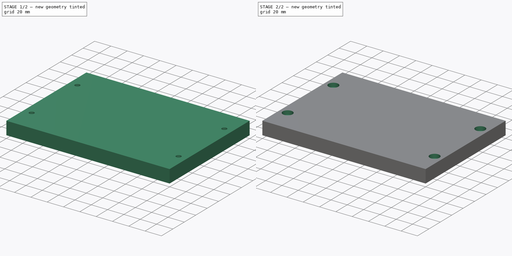
[diagram: build sequence overview — one tinted view per stage of 2, left to right]
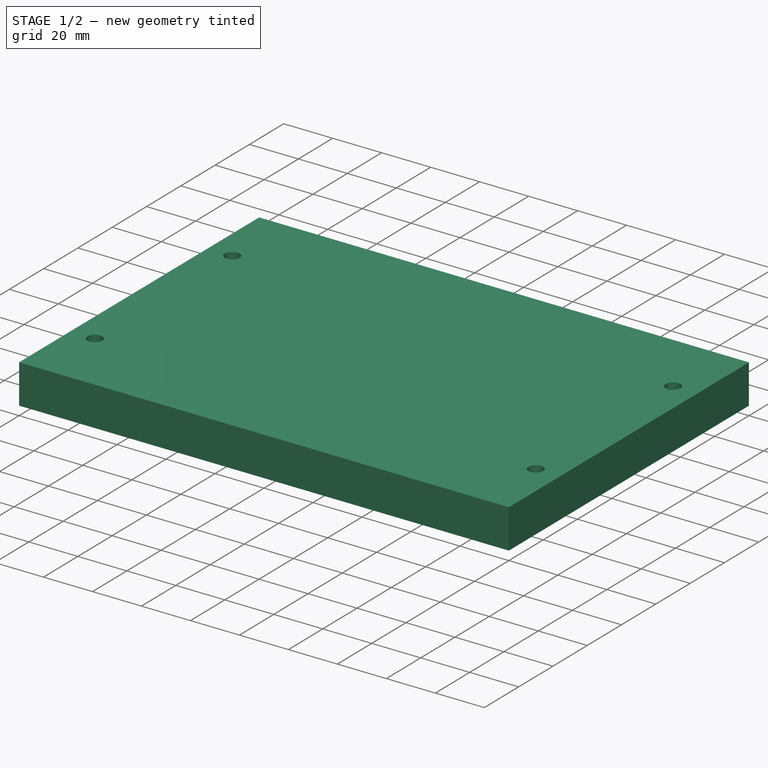
[diagram: stage 1 of 2 — iso view after this stage's code; geometry added in this stage tinted green]
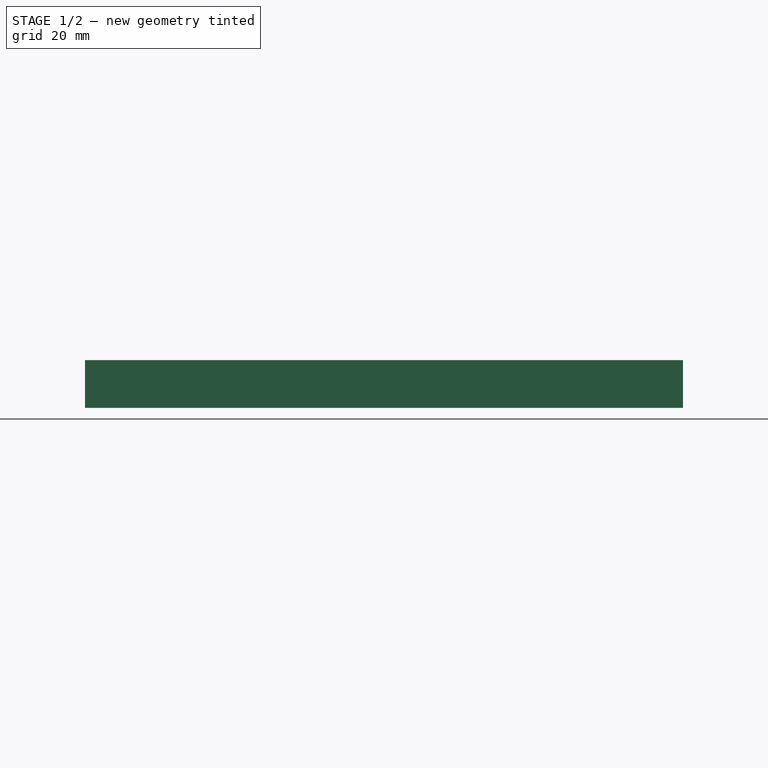
[diagram: stage 1 of 2 — front view after this stage's code; geometry added in this stage tinted green]
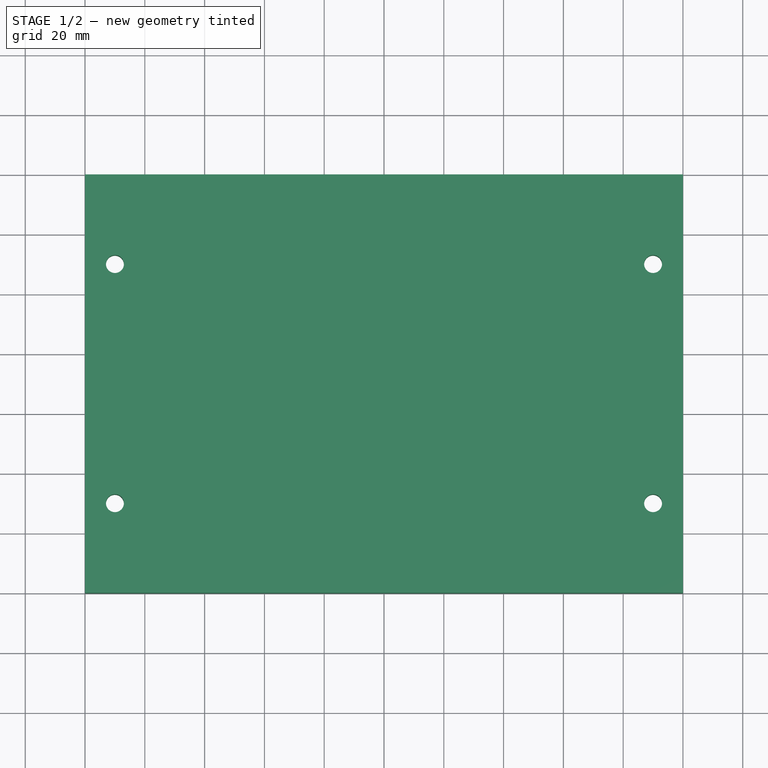
[diagram: stage 1 of 2 — top view after this stage's code; geometry added in this stage tinted green]
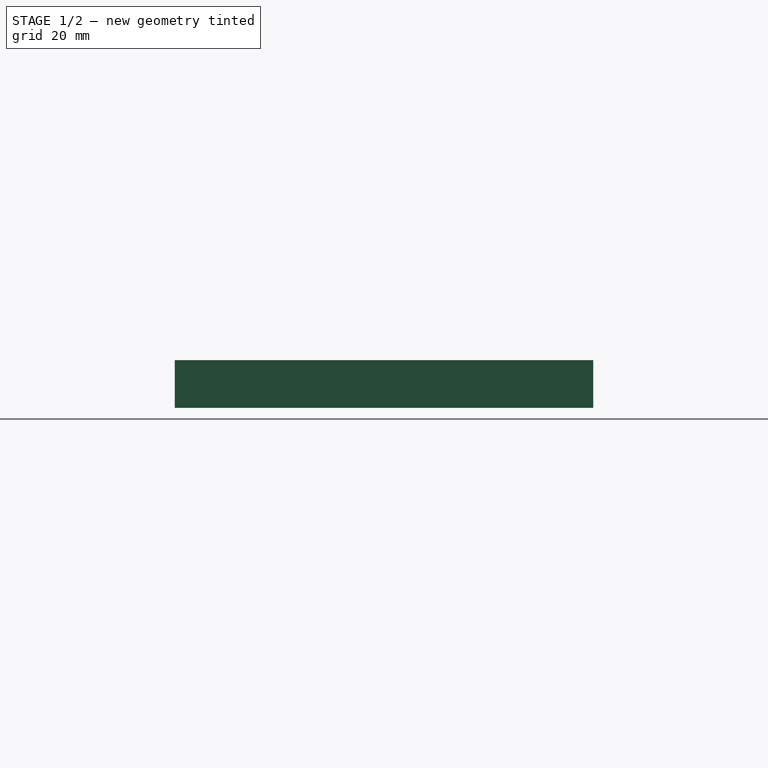
[diagram: stage 1 of 2 — right view after this stage's code; geometry added in this stage tinted green]
FCSTD DOCUMENT  (FreeCAD 0.17R9796 (Git))
Label: front_plate
License: All rights reserved
LicenseURL: http://en.wikipedia.org/wiki/All_rights_reserved
objects: Sketcher::SketchObject×2, PartDesign::Pad×1, PartDesign::Pocket×1, PartDesign::Body×1
note: 7 computed .brp shape members not serialized (recipe doc carries the construction recipe); baked Part::Feature solids carry a one-line shape summary decoded from their .brp

FEATURE [Sketcher::SketchObject] Sketch
  MapMode = 5
  Support = -> [XY_Plane]
  sketch-geometry (8):
    g0: LineSegment StartX=0 StartY=140 StartZ=0 EndX=200 EndY=140 EndZ=0
    g1: LineSegment StartX=200 StartY=140 StartZ=0 EndX=200 EndY=0 EndZ=0
    g2: LineSegment StartX=200 StartY=0 StartZ=0 EndX=0 EndY=0 EndZ=0
    g3: LineSegment StartX=0 StartY=0 StartZ=0 EndX=0 EndY=140 EndZ=0
    g4: Circle CenterX=10 CenterY=110 CenterZ=0 NormalX=0 NormalY=0 NormalZ=1 Radius=3
    g5: Circle CenterX=10 CenterY=30 CenterZ=0 NormalX=0 NormalY=0 NormalZ=1 Radius=3
    g6: Circle CenterX=190 CenterY=110 CenterZ=0 NormalX=0 NormalY=0 NormalZ=1 Radius=3
    g7: Circle CenterX=190 CenterY=30 CenterZ=0 NormalX=0 NormalY=0 NormalZ=1 Radius=3
  constraints (23):
    c: Coincident(g0,g1)
    c: Coincident(g1,g2)
    c: Coincident(g2,g3)
    c: Coincident(g3,g0)
    c: Horizontal(g0)
    c: Horizontal(g2)
    c: Vertical(g1)
    c: Vertical(g3)
    c: Coincident(g2,g-1)
    c: DistanceY(g3,g3) = 140
    c: DistanceX(g2,g2) = 200
    c: DistanceX(g6,g0) = 10
    c: DistanceX(g7,g1) = 10
    c: DistanceX(g-1,g5) = 10
    c: DistanceX(g0,g4) = 10
    c: DistanceY(g-1,g5) = 30
    c: DistanceY(g1,g7) = 30
    c: DistanceY(g6,g0) = 30
    c: DistanceY(g4,g0) = 30
    c: Radius(g4) = 3
    c: Radius(g6) = 3
    c: Radius(g7) = 3
    c: Radius(g5) = 3
FEATURE [PartDesign::Pad] Pad
  Length = 16
  Length2 = 100
  Profile = -> Sketch
  Type = 0
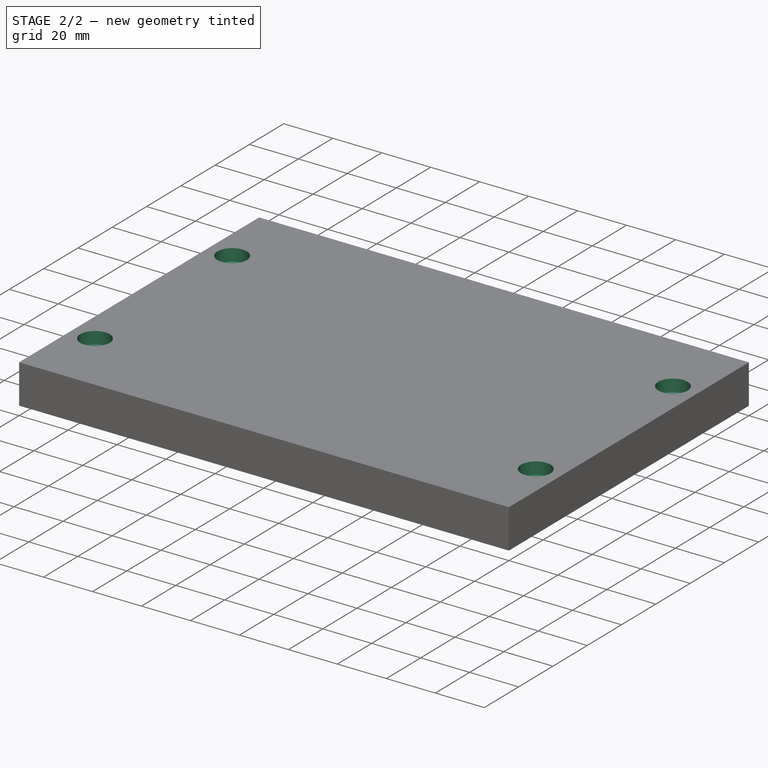
[diagram: stage 2 of 2 — iso view after this stage's code; geometry added in this stage tinted green]
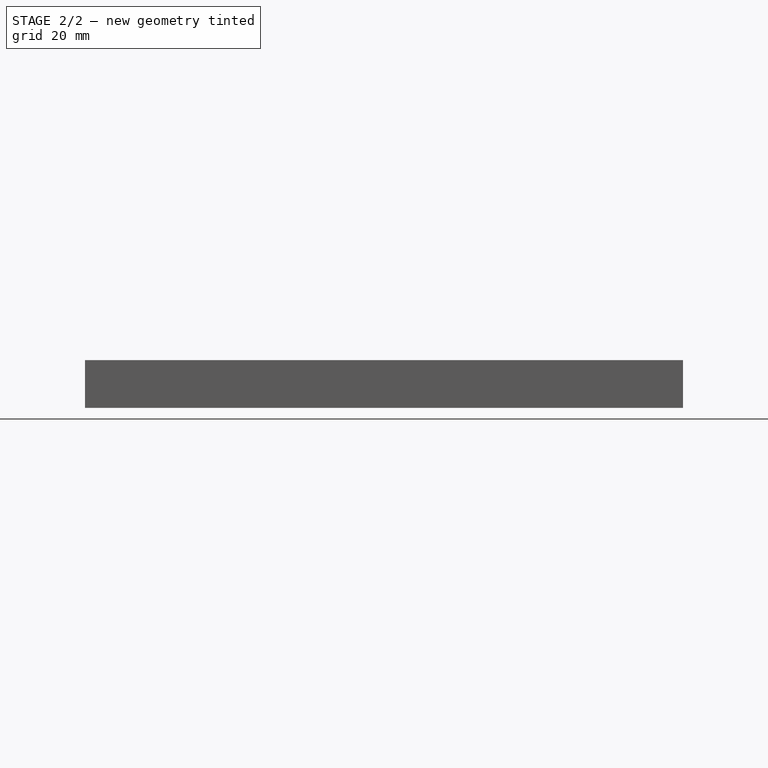
[diagram: stage 2 of 2 — front view after this stage's code; geometry added in this stage tinted green]
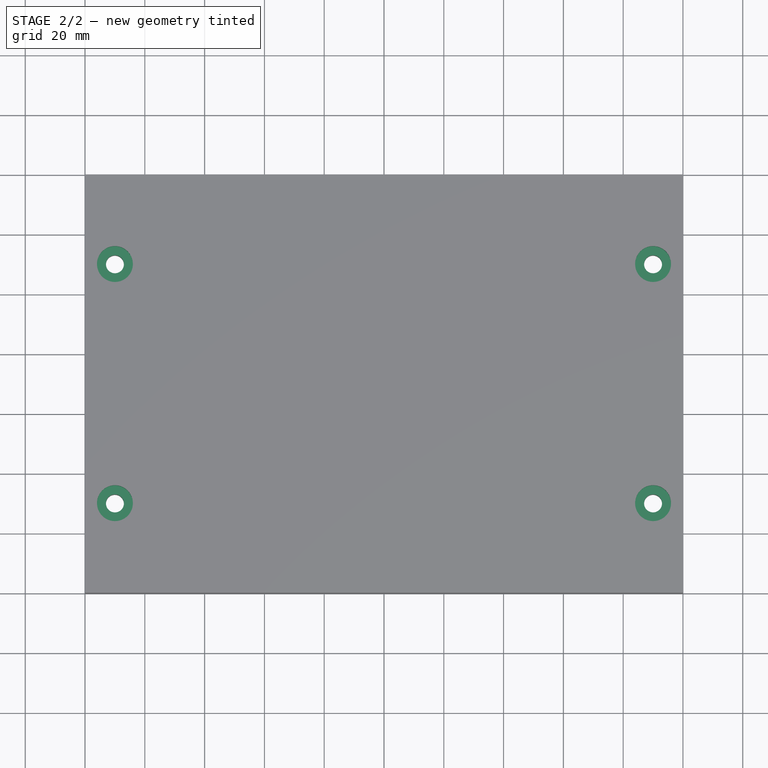
[diagram: stage 2 of 2 — top view after this stage's code; geometry added in this stage tinted green]
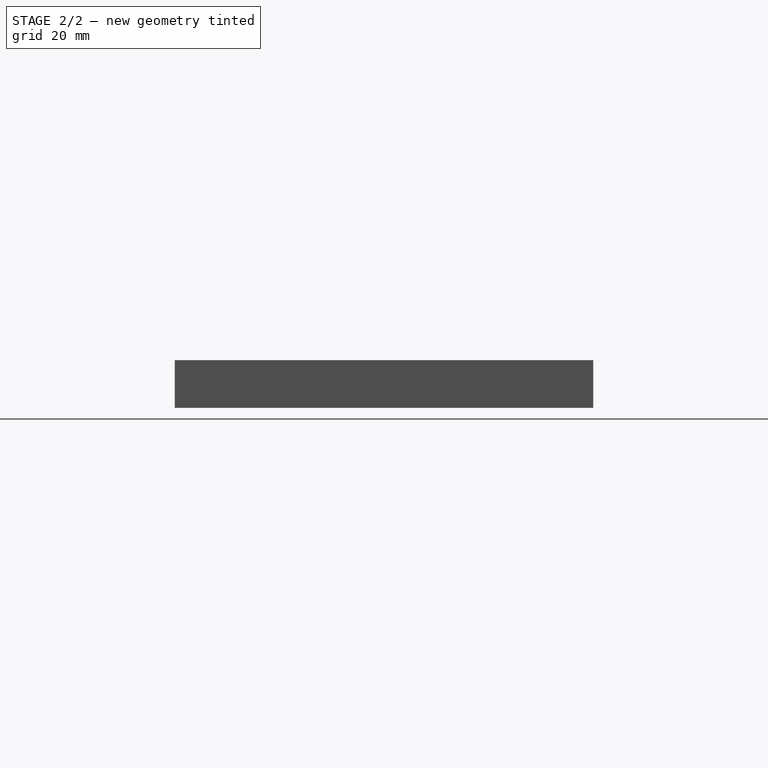
[diagram: stage 2 of 2 — right view after this stage's code; geometry added in this stage tinted green]
FEATURE [Sketcher::SketchObject] Sketch001
  MapMode = 5
  Placement = pos=(0,0,16) rot=(0,0,1;0rad)
  Support = -> [Pad]
  sketch-geometry (4):
    g0: Circle CenterX=10 CenterY=110 CenterZ=0 NormalX=0 NormalY=0 NormalZ=1 Radius=6
    g1: Circle CenterX=190 CenterY=110 CenterZ=0 NormalX=0 NormalY=0 NormalZ=1 Radius=6
    g2: Circle CenterX=190 CenterY=30 CenterZ=0 NormalX=0 NormalY=0 NormalZ=1 Radius=6
    g3: Circle CenterX=10 CenterY=30 CenterZ=0 NormalX=0 NormalY=0 NormalZ=1 Radius=6
  constraints (12):
    c: DistanceX(g-1,g0) = 10
    c: DistanceX(g-1,g1) = 190
    c: DistanceX(g-1,g2) = 190
    c: DistanceX(g-1,g3) = 10
    c: DistanceY(g-1,g3) = 30
    c: DistanceY(g-1,g0) = 110
    c: DistanceY(g-1,g1) = 110
    c: DistanceY(g-1,g2) = 30
    c: Radius(g0) = 6
    c: Radius(g1) = 6
    c: Radius(g2) = 6
    c: Radius(g3) = 6
FEATURE [PartDesign::Pocket] Pocket
  BaseFeature = -> Pad
  Length = 5
  Profile = -> Sketch001
  Type = 0
FEATURE [PartDesign::Body] Body
  Group = -> [Sketch,Pad,Sketch001,Pocket]
  Origin = -> BodyOrigin
  Tip = -> Pocket
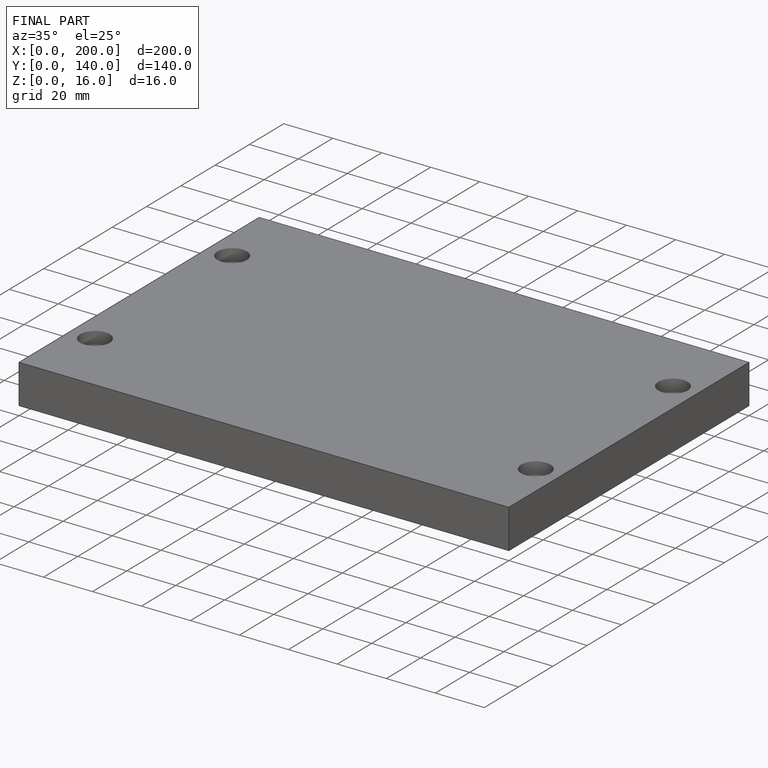
[diagram: finished part — iso view with bounding-box wireframe]
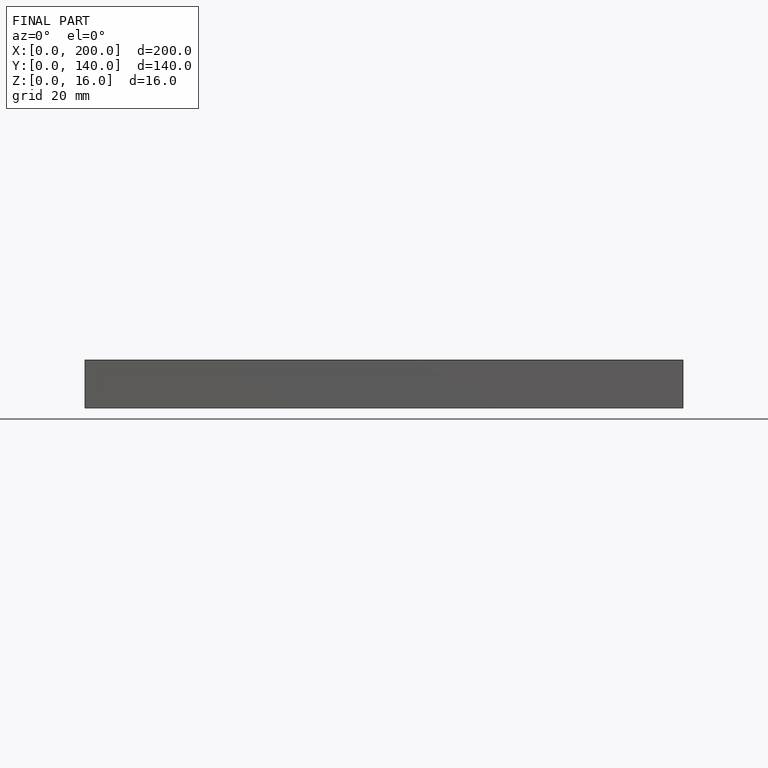
[diagram: finished part — front view with bounding-box wireframe]
